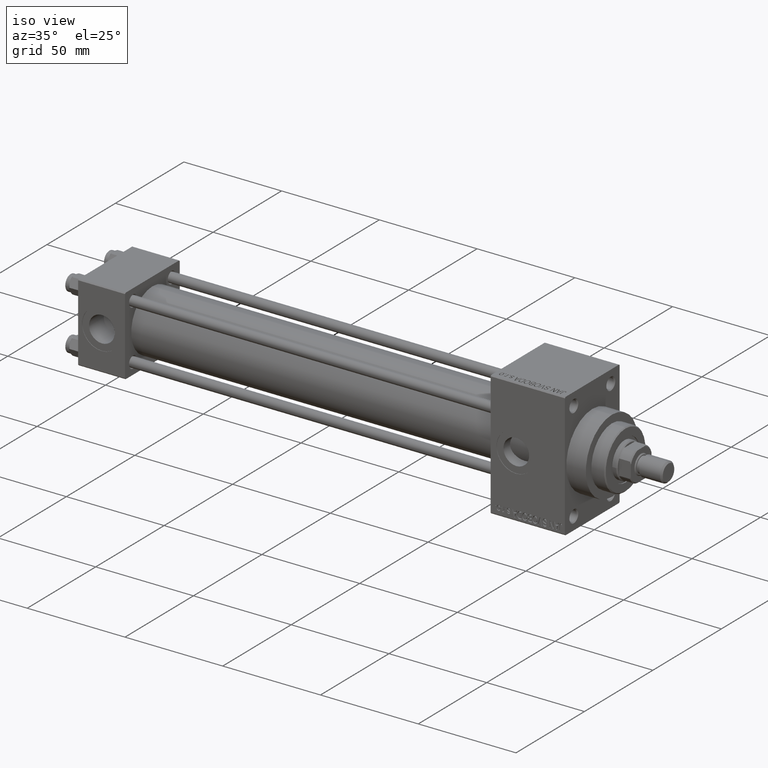
[diagram: clean part render]
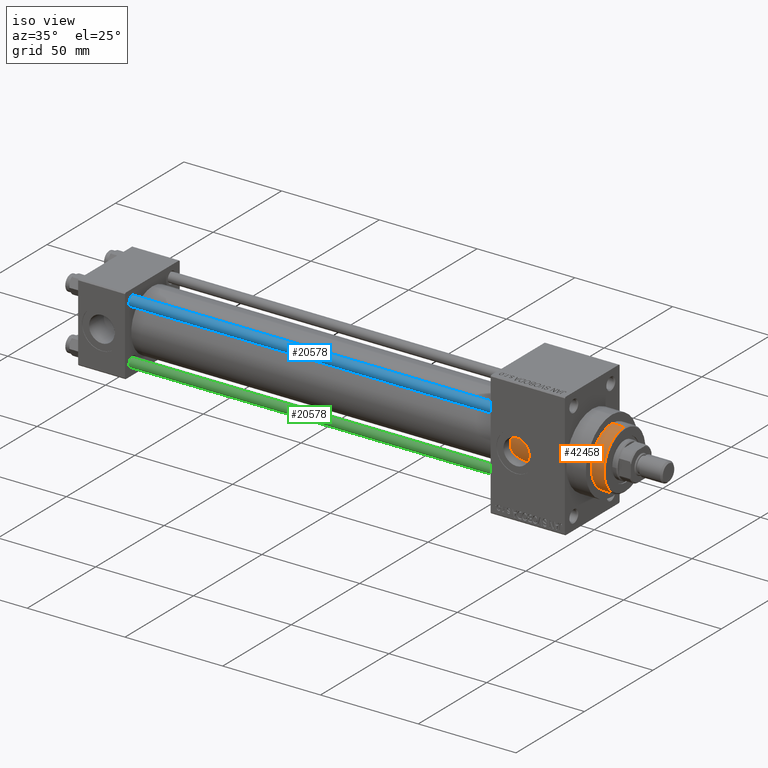
[diagram: same view with three faces highlighted in distinct colors, each labeled with its STEP entity id]
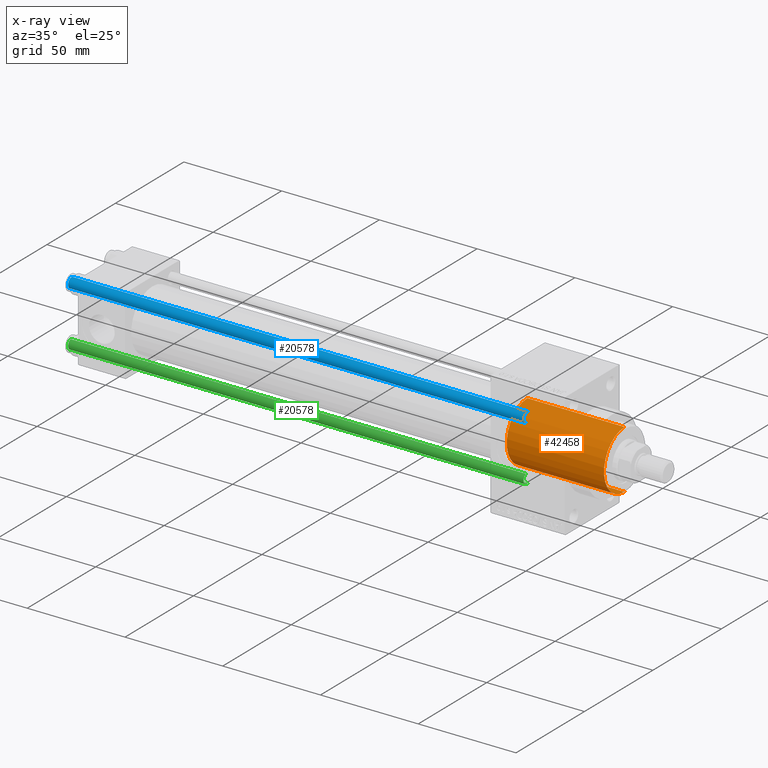
[diagram: x-ray of the same camera — body ghosted, the three highlighted faces saturated]
A machine part, iso view with three faces highlighted in distinct colors.
The next image is the same camera in x-ray (body ghosted, the three faces saturated) — at least one of them is partly hidden behind the body in this view.
Their STEP definitions:

[orange] entity #42458 — the highlighted cylindrical surface (edge-blend (fillet) strip) has radius 15 mm, axis along (-1, 0, 0).
#843 = EDGE_CURVE ( 'NONE', #12501, #5121, #40182, .T. ) ;
#1666 = AXIS2_PLACEMENT_3D ( 'NONE', #14241, #44754, #14997 ) ;
#5121 = VERTEX_POINT ( 'NONE', #41146 ) ;
#5194 = DIRECTION ( 'NONE',  ( -0.000000000000000000, -0.000000000000000000, -1.000000000000000000 ) ) ;
#5684 = DIRECTION ( 'NONE',  ( 1.000000000000000000, 0.000000000000000000, 0.000000000000000000 ) ) ;
#8465 = AXIS2_PLACEMENT_3D ( 'NONE', #8691, #5194, #31944 ) ;
#8691 = CARTESIAN_POINT ( 'NONE',  ( 0.000000000000000000, 0.000000000000000000, 43.25999999999999801 ) ) ;
#10410 = VECTOR ( 'NONE', #35764, 1000.000000000000000 ) ;
#12501 = VERTEX_POINT ( 'NONE', #25297 ) ;
#13175 = VECTOR ( 'NONE', #22018, 1000.000000000000000 ) ;
#14241 = CARTESIAN_POINT ( 'NONE',  ( 0.000000000000000000, 0.000000000000000000, 0.000000000000000000 ) ) ;
#14997 = DIRECTION ( 'NONE',  ( 1.000000000000000000, 0.000000000000000000, 0.000000000000000000 ) ) ;
#15095 = VERTEX_POINT ( 'NONE', #15844 ) ;
#15844 = CARTESIAN_POINT ( 'NONE',  ( -15.00000000000000000, 0.000000000000000000, 0.000000000000000000 ) ) ;
#16696 = CYLINDRICAL_SURFACE ( 'NONE', #8465, 15.00000000000000000 ) ;
#19797 = CARTESIAN_POINT ( 'NONE',  ( 15.00000000000000000, 1.836970198721029589E-15, 43.25999999999999801 ) ) ;
#22018 = DIRECTION ( 'NONE',  ( -0.000000000000000000, -0.000000000000000000, -1.000000000000000000 ) ) ;
#22413 = EDGE_CURVE ( 'NONE', #5121, #42501, #43021, .T. ) ;
#24696 = DIRECTION ( 'NONE',  ( 0.000000000000000000, 0.000000000000000000, -1.000000000000000000 ) ) ;
#25297 = CARTESIAN_POINT ( 'NONE',  ( -15.00000000000000000, 0.000000000000000000, 49.75999999999998380 ) ) ;
#25425 = CARTESIAN_POINT ( 'NONE',  ( 15.00000000000000000, 1.836970198721029589E-15, 0.000000000000000000 ) ) ;
#25505 = LINE ( 'NONE', #40996, #13175 ) ;
#26681 = EDGE_CURVE ( 'NONE', #42501, #15095, #46400, .T. ) ;
#27580 = ORIENTED_EDGE ( 'NONE', *, *, #22413, .T. ) ;
#31944 = DIRECTION ( 'NONE',  ( -1.000000000000000000, 0.000000000000000000, 0.000000000000000000 ) ) ;
#32928 = CARTESIAN_POINT ( 'NONE',  ( 0.000000000000000000, 0.000000000000000000, 49.75999999999998380 ) ) ;
#33652 = ORIENTED_EDGE ( 'NONE', *, *, #39933, .F. ) ;
#35764 = DIRECTION ( 'NONE',  ( -0.000000000000000000, -0.000000000000000000, -1.000000000000000000 ) ) ;
#36773 = EDGE_LOOP ( 'NONE', ( #42912, #27580, #41798, #33652 ) ) ;
#39933 = EDGE_CURVE ( 'NONE', #12501, #15095, #25505, .T. ) ;
#40182 = CIRCLE ( 'NONE', #46583, 15.00000000000000000 ) ;
#40996 = CARTESIAN_POINT ( 'NONE',  ( -15.00000000000000000, 0.000000000000000000, 43.25999999999999801 ) ) ;
#41146 = CARTESIAN_POINT ( 'NONE',  ( 15.00000000000000000, 1.836970198721029589E-15, 49.75999999999998380 ) ) ;
#41798 = ORIENTED_EDGE ( 'NONE', *, *, #26681, .T. ) ;
#42458 = ADVANCED_FACE ( 'NONE', ( #42937 ), #16696, .T. ) ;
#42501 = VERTEX_POINT ( 'NONE', #25425 ) ;
#42912 = ORIENTED_EDGE ( 'NONE', *, *, #843, .T. ) ;
#42937 = FACE_OUTER_BOUND ( 'NONE', #36773, .T. ) ;
#43021 = LINE ( 'NONE', #19797, #10410 ) ;
#44754 = DIRECTION ( 'NONE',  ( 0.000000000000000000, 0.000000000000000000, 1.000000000000000000 ) ) ;
#46400 = CIRCLE ( 'NONE', #1666, 15.00000000000000000 ) ;
#46583 = AXIS2_PLACEMENT_3D ( 'NONE', #32928, #24696, #5684 ) ;

[blue] entity #20578 — the highlighted cylindrical surface (edge-blend (fillet) strip) has radius 2.5 mm, axis along (1, 0, 0).
#2485 = ORIENTED_EDGE ( 'NONE', *, *, #32477, .T. ) ;
#3265 = CARTESIAN_POINT ( 'NONE',  ( 0.000000000000000000, 0.000000000000000000, 0.5000000000000281997 ) ) ;
#3842 = EDGE_CURVE ( 'NONE', #11327, #44408, #9566, .T. ) ;
#4091 = ORIENTED_EDGE ( 'NONE', *, *, #16455, .T. ) ;
#6239 = CYLINDRICAL_SURFACE ( 'NONE', #27163, 2.500000000000000000 ) ;
#7156 = EDGE_LOOP ( 'NONE', ( #2485, #23014, #4091, #36094 ) ) ;
#9566 = LINE ( 'NONE', #35588, #28304 ) ;
#11327 = VERTEX_POINT ( 'NONE', #46578 ) ;
#12383 = CARTESIAN_POINT ( 'NONE',  ( -2.500000000000000000, 0.000000000000000000, 233.5000000000000284 ) ) ;
#12638 = VERTEX_POINT ( 'NONE', #49297 ) ;
#13212 = DIRECTION ( 'NONE',  ( 0.000000000000000000, 0.000000000000000000, -1.000000000000000000 ) ) ;
#14289 = CIRCLE ( 'NONE', #48644, 2.500000000000000000 ) ;
#14484 = DIRECTION ( 'NONE',  ( -1.000000000000000000, 0.000000000000000000, 0.000000000000000000 ) ) ;
#16455 = EDGE_CURVE ( 'NONE', #44408, #12638, #14289, .T. ) ;
#18941 = CARTESIAN_POINT ( 'NONE',  ( 2.500000000000000000, 3.061616997868383141E-16, 0.5000000000000281997 ) ) ;
#20578 = ADVANCED_FACE ( 'NONE', ( #22006 ), #6239, .T. ) ;
#21766 = DIRECTION ( 'NONE',  ( -0.000000000000000000, -0.000000000000000000, 1.000000000000000000 ) ) ;
#22006 = FACE_OUTER_BOUND ( 'NONE', #7156, .T. ) ;
#22504 = DIRECTION ( 'NONE',  ( -0.000000000000000000, -0.000000000000000000, -1.000000000000000000 ) ) ;
#23014 = ORIENTED_EDGE ( 'NONE', *, *, #3842, .T. ) ;
#23513 = VECTOR ( 'NONE', #41953, 1000.000000000000000 ) ;
#25494 = CARTESIAN_POINT ( 'NONE',  ( 0.000000000000000000, 0.000000000000000000, 234.0000000000000000 ) ) ;
#26713 = LINE ( 'NONE', #42443, #23513 ) ;
#27163 = AXIS2_PLACEMENT_3D ( 'NONE', #25494, #22504, #14484 ) ;
#28304 = VECTOR ( 'NONE', #39346, 1000.000000000000000 ) ;
#29501 = VERTEX_POINT ( 'NONE', #12383 ) ;
#31730 = CARTESIAN_POINT ( 'NONE',  ( 0.000000000000000000, 0.000000000000000000, 233.5000000000000284 ) ) ;
#32205 = AXIS2_PLACEMENT_3D ( 'NONE', #31730, #13212, #43462 ) ;
#32477 = EDGE_CURVE ( 'NONE', #29501, #11327, #43372, .T. ) ;
#35588 = CARTESIAN_POINT ( 'NONE',  ( 2.500000000000000000, 3.061616997868383141E-16, 234.0000000000000000 ) ) ;
#36094 = ORIENTED_EDGE ( 'NONE', *, *, #37972, .F. ) ;
#37972 = EDGE_CURVE ( 'NONE', #29501, #12638, #26713, .T. ) ;
#39346 = DIRECTION ( 'NONE',  ( -0.000000000000000000, -0.000000000000000000, -1.000000000000000000 ) ) ;
#41953 = DIRECTION ( 'NONE',  ( -0.000000000000000000, -0.000000000000000000, -1.000000000000000000 ) ) ;
#42443 = CARTESIAN_POINT ( 'NONE',  ( -2.500000000000000000, 0.000000000000000000, 234.0000000000000000 ) ) ;
#43372 = CIRCLE ( 'NONE', #32205, 2.500000000000000000 ) ;
#43462 = DIRECTION ( 'NONE',  ( 1.000000000000000000, 0.000000000000000000, 0.000000000000000000 ) ) ;
#44408 = VERTEX_POINT ( 'NONE', #18941 ) ;
#45262 = DIRECTION ( 'NONE',  ( 1.000000000000000000, 0.000000000000000000, 0.000000000000000000 ) ) ;
#46578 = CARTESIAN_POINT ( 'NONE',  ( 2.500000000000000000, 3.061616997868383141E-16, 233.5000000000000284 ) ) ;
#48644 = AXIS2_PLACEMENT_3D ( 'NONE', #3265, #21766, #45262 ) ;
#49297 = CARTESIAN_POINT ( 'NONE',  ( -2.500000000000000000, 0.000000000000000000, 0.5000000000000281997 ) ) ;

[green] entity #20578 — the highlighted cylindrical surface (edge-blend (fillet) strip) has radius 2.5 mm, axis along (-1, 0, 0).
#2485 = ORIENTED_EDGE ( 'NONE', *, *, #32477, .T. ) ;
#3265 = CARTESIAN_POINT ( 'NONE',  ( 0.000000000000000000, 0.000000000000000000, 0.5000000000000281997 ) ) ;
#3842 = EDGE_CURVE ( 'NONE', #11327, #44408, #9566, .T. ) ;
#4091 = ORIENTED_EDGE ( 'NONE', *, *, #16455, .T. ) ;
#6239 = CYLINDRICAL_SURFACE ( 'NONE', #27163, 2.500000000000000000 ) ;
#7156 = EDGE_LOOP ( 'NONE', ( #2485, #23014, #4091, #36094 ) ) ;
#9566 = LINE ( 'NONE', #35588, #28304 ) ;
#11327 = VERTEX_POINT ( 'NONE', #46578 ) ;
#12383 = CARTESIAN_POINT ( 'NONE',  ( -2.500000000000000000, 0.000000000000000000, 233.5000000000000284 ) ) ;
#12638 = VERTEX_POINT ( 'NONE', #49297 ) ;
#13212 = DIRECTION ( 'NONE',  ( 0.000000000000000000, 0.000000000000000000, -1.000000000000000000 ) ) ;
#14289 = CIRCLE ( 'NONE', #48644, 2.500000000000000000 ) ;
#14484 = DIRECTION ( 'NONE',  ( -1.000000000000000000, 0.000000000000000000, 0.000000000000000000 ) ) ;
#16455 = EDGE_CURVE ( 'NONE', #44408, #12638, #14289, .T. ) ;
#18941 = CARTESIAN_POINT ( 'NONE',  ( 2.500000000000000000, 3.061616997868383141E-16, 0.5000000000000281997 ) ) ;
#20578 = ADVANCED_FACE ( 'NONE', ( #22006 ), #6239, .T. ) ;
#21766 = DIRECTION ( 'NONE',  ( -0.000000000000000000, -0.000000000000000000, 1.000000000000000000 ) ) ;
#22006 = FACE_OUTER_BOUND ( 'NONE', #7156, .T. ) ;
#22504 = DIRECTION ( 'NONE',  ( -0.000000000000000000, -0.000000000000000000, -1.000000000000000000 ) ) ;
#23014 = ORIENTED_EDGE ( 'NONE', *, *, #3842, .T. ) ;
#23513 = VECTOR ( 'NONE', #41953, 1000.000000000000000 ) ;
#25494 = CARTESIAN_POINT ( 'NONE',  ( 0.000000000000000000, 0.000000000000000000, 234.0000000000000000 ) ) ;
#26713 = LINE ( 'NONE', #42443, #23513 ) ;
#27163 = AXIS2_PLACEMENT_3D ( 'NONE', #25494, #22504, #14484 ) ;
#28304 = VECTOR ( 'NONE', #39346, 1000.000000000000000 ) ;
#29501 = VERTEX_POINT ( 'NONE', #12383 ) ;
#31730 = CARTESIAN_POINT ( 'NONE',  ( 0.000000000000000000, 0.000000000000000000, 233.5000000000000284 ) ) ;
#32205 = AXIS2_PLACEMENT_3D ( 'NONE', #31730, #13212, #43462 ) ;
#32477 = EDGE_CURVE ( 'NONE', #29501, #11327, #43372, .T. ) ;
#35588 = CARTESIAN_POINT ( 'NONE',  ( 2.500000000000000000, 3.061616997868383141E-16, 234.0000000000000000 ) ) ;
#36094 = ORIENTED_EDGE ( 'NONE', *, *, #37972, .F. ) ;
#37972 = EDGE_CURVE ( 'NONE', #29501, #12638, #26713, .T. ) ;
#39346 = DIRECTION ( 'NONE',  ( -0.000000000000000000, -0.000000000000000000, -1.000000000000000000 ) ) ;
#41953 = DIRECTION ( 'NONE',  ( -0.000000000000000000, -0.000000000000000000, -1.000000000000000000 ) ) ;
#42443 = CARTESIAN_POINT ( 'NONE',  ( -2.500000000000000000, 0.000000000000000000, 234.0000000000000000 ) ) ;
#43372 = CIRCLE ( 'NONE', #32205, 2.500000000000000000 ) ;
#43462 = DIRECTION ( 'NONE',  ( 1.000000000000000000, 0.000000000000000000, 0.000000000000000000 ) ) ;
#44408 = VERTEX_POINT ( 'NONE', #18941 ) ;
#45262 = DIRECTION ( 'NONE',  ( 1.000000000000000000, 0.000000000000000000, 0.000000000000000000 ) ) ;
#46578 = CARTESIAN_POINT ( 'NONE',  ( 2.500000000000000000, 3.061616997868383141E-16, 233.5000000000000284 ) ) ;
#48644 = AXIS2_PLACEMENT_3D ( 'NONE', #3265, #21766, #45262 ) ;
#49297 = CARTESIAN_POINT ( 'NONE',  ( -2.500000000000000000, 0.000000000000000000, 0.5000000000000281997 ) ) ;